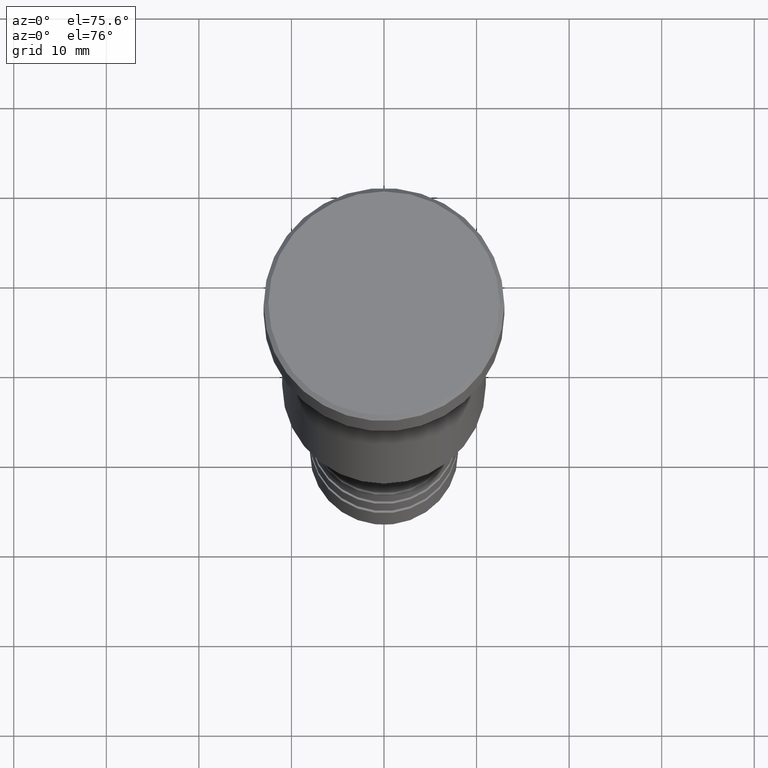
[diagram: clean part render]
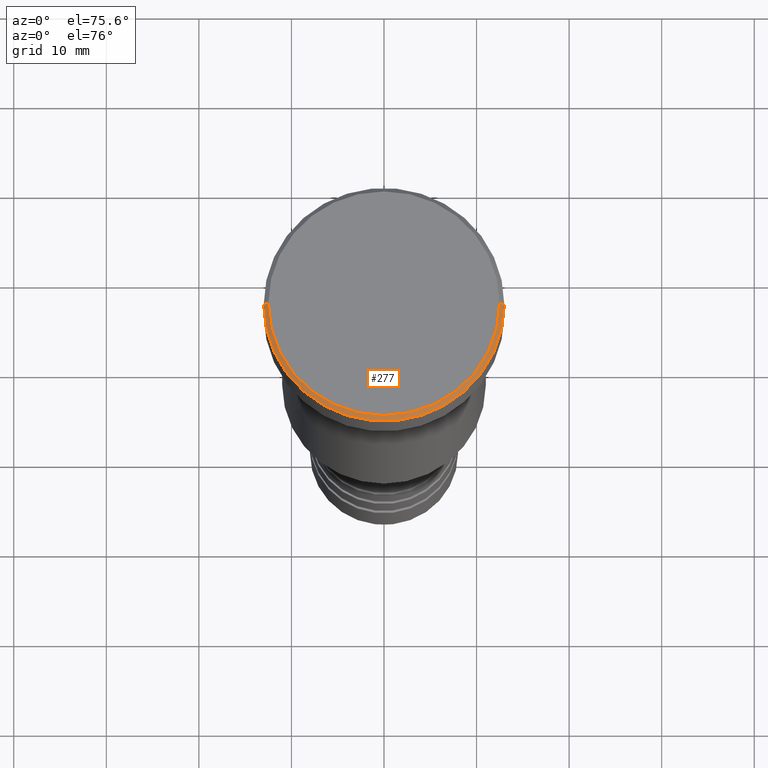
[diagram: same view with one face highlighted and labeled with its STEP entity id]
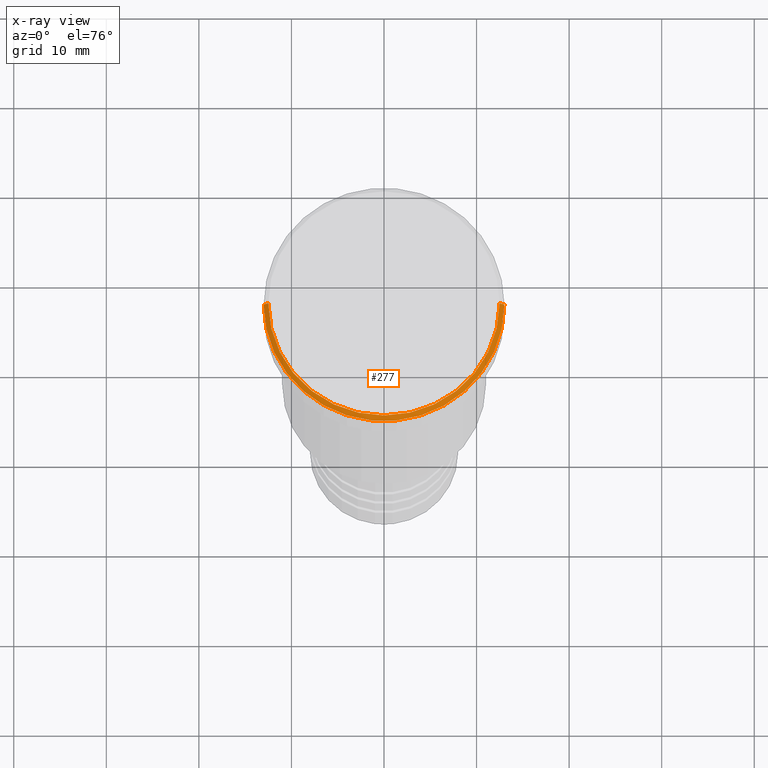
[diagram: x-ray of the same camera — body ghosted, the highlighted face saturated]
A machine part, auxiliary view. The second image highlights one B-rep face of the part: STEP entity #277.
The next image is the same camera in x-ray: the body ghosted, the highlighted face saturated — about 0% of this face is hidden behind the body in this view.
In plain terms, the highlighted conical surface has half-angle 45 deg.
Its self-contained STEP definition (entity closure, byte-faithful):
#5 = CIRCLE ( 'NONE', #669, 12.49999999999999645 ) ;
#6 = DIRECTION ( 'NONE',  ( 1.000000000000000000, 0.000000000000000000, 0.000000000000000000 ) ) ;
#29 = CARTESIAN_POINT ( 'NONE',  ( -13.00000000000000000, 1.592040838891559095E-15, -0.5000000000000004441 ) ) ;
#83 = EDGE_CURVE ( 'NONE', #1182, #767, #880, .T. ) ;
#100 = DIRECTION ( 'NONE',  ( 0.7071067811865487940, 8.659560562354948882E-17, -0.7071067811865463515 ) ) ;
#190 = EDGE_CURVE ( 'NONE', #431, #914, #5, .T. ) ;
#250 = VECTOR ( 'NONE', #1067, 1000.000000000000000 ) ;
#277 = ADVANCED_FACE ( 'NONE', ( #651 ), #791, .T. ) ;
#379 = CARTESIAN_POINT ( 'NONE',  ( 0.000000000000000000, 0.000000000000000000, -0.5000000000000004441 ) ) ;
#402 = EDGE_CURVE ( 'NONE', #431, #767, #508, .T. ) ;
#430 = DIRECTION ( 'NONE',  ( -1.000000000000000000, 0.000000000000000000, 0.000000000000000000 ) ) ;
#431 = VERTEX_POINT ( 'NONE', #604 ) ;
#457 = ORIENTED_EDGE ( 'NONE', *, *, #83, .F. ) ;
#465 = CARTESIAN_POINT ( 'NONE',  ( 0.000000000000000000, 0.000000000000000000, 0.000000000000000000 ) ) ;
#508 = LINE ( 'NONE', #520, #250 ) ;
#520 = CARTESIAN_POINT ( 'NONE',  ( -12.49999999999999645, 0.000000000000000000, 0.000000000000000000 ) ) ;
#550 = CARTESIAN_POINT ( 'NONE',  ( 12.49999999999999645, 1.530808498934191127E-15, 0.000000000000000000 ) ) ;
#555 = LINE ( 'NONE', #550, #866 ) ;
#565 = EDGE_LOOP ( 'NONE', ( #776, #568, #906, #457 ) ) ;
#568 = ORIENTED_EDGE ( 'NONE', *, *, #190, .F. ) ;
#604 = CARTESIAN_POINT ( 'NONE',  ( -12.49999999999999645, 0.000000000000000000, 0.000000000000000000 ) ) ;
#651 = FACE_OUTER_BOUND ( 'NONE', #565, .T. ) ;
#669 = AXIS2_PLACEMENT_3D ( 'NONE', #465, #993, #6 ) ;
#720 = EDGE_CURVE ( 'NONE', #914, #1182, #555, .T. ) ;
#767 = VERTEX_POINT ( 'NONE', #29 ) ;
#776 = ORIENTED_EDGE ( 'NONE', *, *, #720, .F. ) ;
#791 = CONICAL_SURFACE ( 'NONE', #1072, 12.49999999999999645, 0.7853981633974500554 ) ;
#810 = AXIS2_PLACEMENT_3D ( 'NONE', #379, #923, #1179 ) ;
#866 = VECTOR ( 'NONE', #100, 1000.000000000000000 ) ;
#880 = CIRCLE ( 'NONE', #810, 13.00000000000000000 ) ;
#906 = ORIENTED_EDGE ( 'NONE', *, *, #402, .T. ) ;
#914 = VERTEX_POINT ( 'NONE', #937 ) ;
#923 = DIRECTION ( 'NONE',  ( 0.000000000000000000, 0.000000000000000000, -1.000000000000000000 ) ) ;
#937 = CARTESIAN_POINT ( 'NONE',  ( 12.49999999999999645, 1.561424668912875111E-15, 0.000000000000000000 ) ) ;
#939 = CARTESIAN_POINT ( 'NONE',  ( 0.000000000000000000, 0.000000000000000000, 0.000000000000000000 ) ) ;
#946 = DIRECTION ( 'NONE',  ( 0.000000000000000000, 0.000000000000000000, -1.000000000000000000 ) ) ;
#947 = CARTESIAN_POINT ( 'NONE',  ( 13.00000000000000000, 0.000000000000000000, -0.5000000000000004441 ) ) ;
#993 = DIRECTION ( 'NONE',  ( -0.000000000000000000, -0.000000000000000000, 1.000000000000000000 ) ) ;
#1067 = DIRECTION ( 'NONE',  ( -0.7071067811865487940, 0.000000000000000000, -0.7071067811865463515 ) ) ;
#1072 = AXIS2_PLACEMENT_3D ( 'NONE', #939, #946, #430 ) ;
#1179 = DIRECTION ( 'NONE',  ( 1.000000000000000000, 0.000000000000000000, 0.000000000000000000 ) ) ;
#1182 = VERTEX_POINT ( 'NONE', #947 ) ;